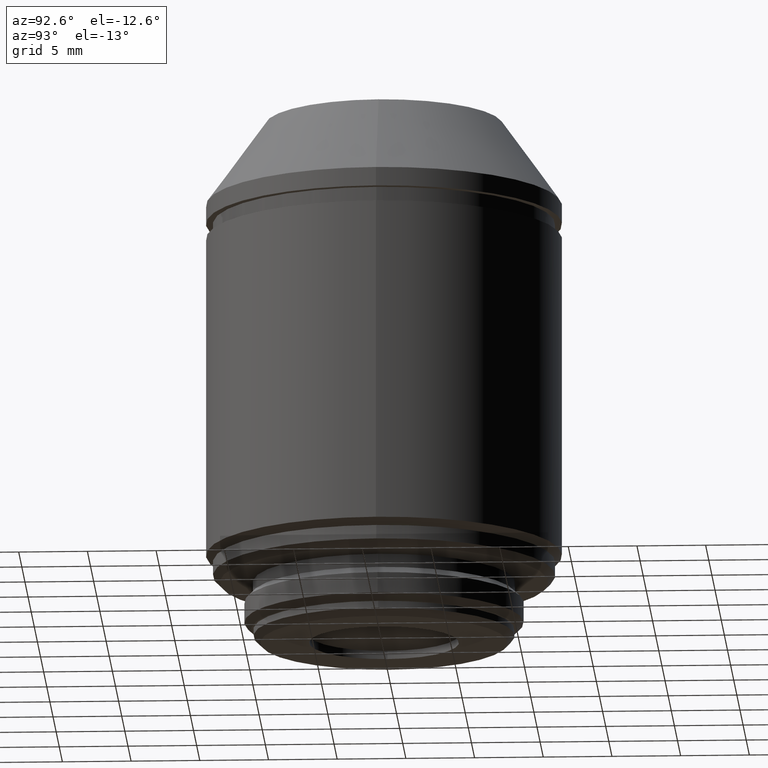
[diagram: clean part render]
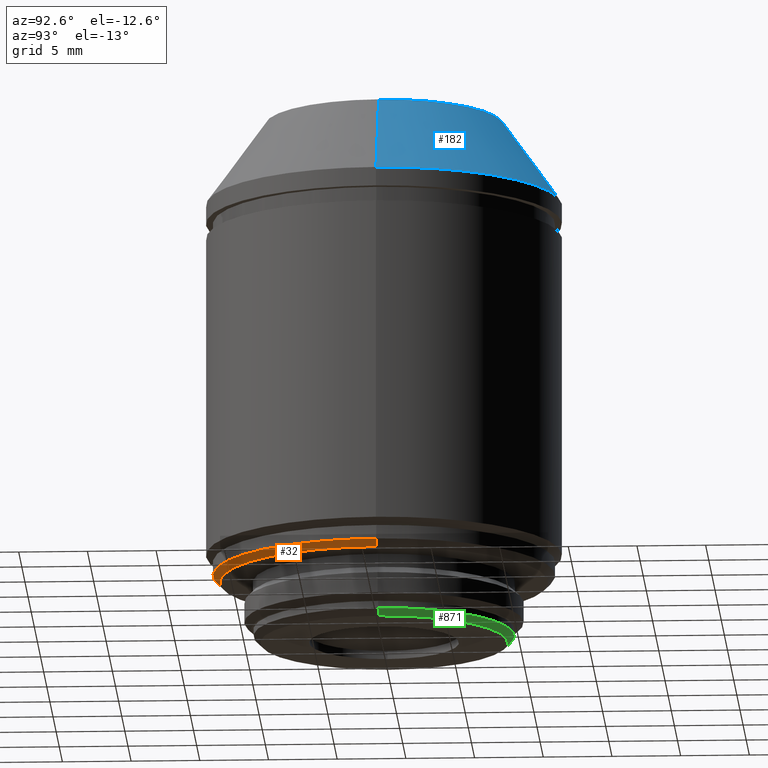
[diagram: same view with three faces highlighted in distinct colors, each labeled with its STEP entity id]
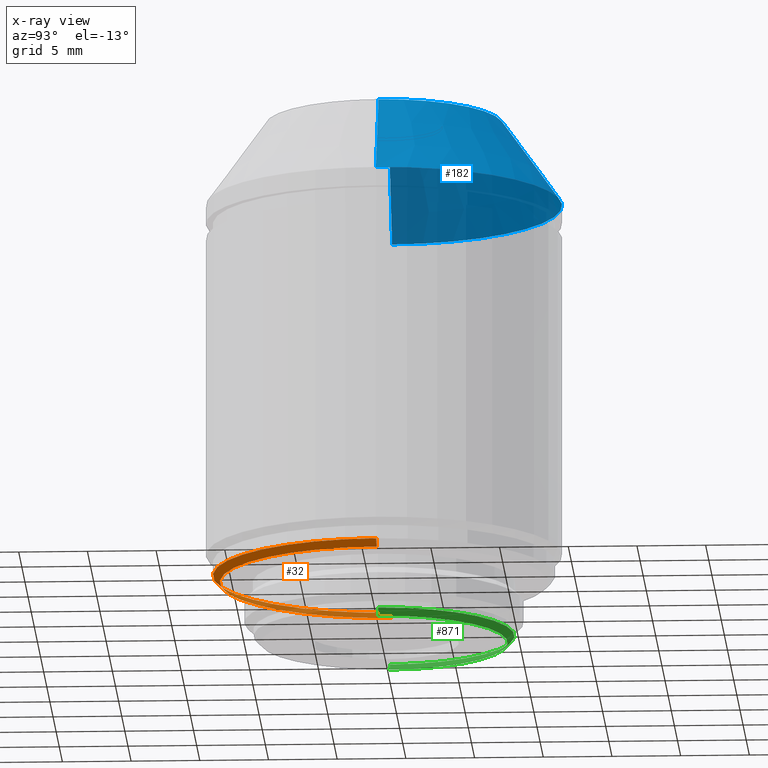
[diagram: x-ray of the same camera — body ghosted, the three highlighted faces saturated]
A machine part, auxiliary view with three faces highlighted in distinct colors.
The next image is the same camera in x-ray (body ghosted, the three faces saturated) — at least one of them is partly hidden behind the body in this view.
Their STEP definitions:

[orange] entity #32 — the highlighted conical surface has half-angle 45 deg.
#32 = ADVANCED_FACE ( 'NONE', ( #636 ), #53, .T. ) ;
#40 = CARTESIAN_POINT ( 'NONE',  ( 0.000000000000000000, 0.000000000000000000, 4.389999999999997904 ) ) ;
#53 = CONICAL_SURFACE ( 'NONE', #229, 12.44999999999999751, 0.7853981633974466137 ) ;
#62 = DIRECTION ( 'NONE',  ( 1.000000000000000000, 0.000000000000000000, 0.000000000000000000 ) ) ;
#210 = CIRCLE ( 'NONE', #476, 11.94999999999999929 ) ;
#223 = ORIENTED_EDGE ( 'NONE', *, *, #918, .F. ) ;
#229 = AXIS2_PLACEMENT_3D ( 'NONE', #40, #790, #874 ) ;
#249 = CIRCLE ( 'NONE', #495, 12.44999999999999751 ) ;
#296 = ORIENTED_EDGE ( 'NONE', *, *, #866, .F. ) ;
#318 = ORIENTED_EDGE ( 'NONE', *, *, #720, .T. ) ;
#324 = ORIENTED_EDGE ( 'NONE', *, *, #895, .T. ) ;
#327 = CARTESIAN_POINT ( 'NONE',  ( -12.44999999999999751, 1.524685264938454448E-15, 4.389999999999997904 ) ) ;
#412 = DIRECTION ( 'NONE',  ( -0.000000000000000000, -0.000000000000000000, 1.000000000000000000 ) ) ;
#417 = CARTESIAN_POINT ( 'NONE',  ( 0.000000000000000000, 0.000000000000000000, 3.889999999999997460 ) ) ;
#433 = VERTEX_POINT ( 'NONE', #934 ) ;
#476 = AXIS2_PLACEMENT_3D ( 'NONE', #417, #412, #983 ) ;
#495 = AXIS2_PLACEMENT_3D ( 'NONE', #989, #816, #62 ) ;
#588 = CARTESIAN_POINT ( 'NONE',  ( 12.44999999999999751, 0.000000000000000000, 4.389999999999997904 ) ) ;
#636 = FACE_OUTER_BOUND ( 'NONE', #646, .T. ) ;
#646 = EDGE_LOOP ( 'NONE', ( #223, #324, #318, #296 ) ) ;
#704 = VECTOR ( 'NONE', #975, 1000.000000000000000 ) ;
#720 = EDGE_CURVE ( 'NONE', #1026, #936, #725, .T. ) ;
#725 = LINE ( 'NONE', #1056, #704 ) ;
#750 = LINE ( 'NONE', #327, #963 ) ;
#779 = VERTEX_POINT ( 'NONE', #996 ) ;
#790 = DIRECTION ( 'NONE',  ( -0.000000000000000000, -0.000000000000000000, 1.000000000000000000 ) ) ;
#816 = DIRECTION ( 'NONE',  ( -0.000000000000000000, -0.000000000000000000, 1.000000000000000000 ) ) ;
#834 = CARTESIAN_POINT ( 'NONE',  ( 11.94999999999999929, 0.000000000000000000, 3.889999999999997460 ) ) ;
#866 = EDGE_CURVE ( 'NONE', #779, #936, #249, .T. ) ;
#874 = DIRECTION ( 'NONE',  ( 1.000000000000000000, 0.000000000000000000, 0.000000000000000000 ) ) ;
#895 = EDGE_CURVE ( 'NONE', #433, #1026, #210, .T. ) ;
#918 = EDGE_CURVE ( 'NONE', #433, #779, #750, .T. ) ;
#934 = CARTESIAN_POINT ( 'NONE',  ( -11.94999999999999929, 1.494069094959770661E-15, 3.889999999999997460 ) ) ;
#936 = VERTEX_POINT ( 'NONE', #588 ) ;
#963 = VECTOR ( 'NONE', #994, 1000.000000000000000 ) ;
#975 = DIRECTION ( 'NONE',  ( 0.7071067811865463515, 0.000000000000000000, 0.7071067811865487940 ) ) ;
#983 = DIRECTION ( 'NONE',  ( 1.000000000000000000, 0.000000000000000000, 0.000000000000000000 ) ) ;
#989 = CARTESIAN_POINT ( 'NONE',  ( 0.000000000000000000, 0.000000000000000000, 4.389999999999997904 ) ) ;
#994 = DIRECTION ( 'NONE',  ( -0.7071067811865463515, 8.659560562354918067E-17, 0.7071067811865487940 ) ) ;
#996 = CARTESIAN_POINT ( 'NONE',  ( -12.44999999999999751, 1.524685264938454448E-15, 4.389999999999997904 ) ) ;
#1026 = VERTEX_POINT ( 'NONE', #834 ) ;
#1056 = CARTESIAN_POINT ( 'NONE',  ( 12.44999999999999751, 0.000000000000000000, 4.389999999999997904 ) ) ;

[blue] entity #182 — the highlighted conical surface has half-angle 35.628 deg.
#76 = CARTESIAN_POINT ( 'NONE',  ( 0.000000000000000000, 0.000000000000000000, 37.94999999999999574 ) ) ;
#98 = DIRECTION ( 'NONE',  ( 0.000000000000000000, 0.000000000000000000, 1.000000000000000000 ) ) ;
#151 = DIRECTION ( 'NONE',  ( -1.000000000000000000, 0.000000000000000000, 0.000000000000000000 ) ) ;
#158 = AXIS2_PLACEMENT_3D ( 'NONE', #179, #98, #711 ) ;
#179 = CARTESIAN_POINT ( 'NONE',  ( 0.000000000000000000, 0.000000000000000000, 31.94999999999999929 ) ) ;
#180 = CARTESIAN_POINT ( 'NONE',  ( -8.650000000000000355, 0.000000000000000000, 37.94999999999999574 ) ) ;
#182 = ADVANCED_FACE ( 'NONE', ( #748 ), #599, .T. ) ;
#222 = DIRECTION ( 'NONE',  ( -0.5825189414280079747, 0.000000000000000000, -0.8128171275739660695 ) ) ;
#253 = ORIENTED_EDGE ( 'NONE', *, *, #444, .T. ) ;
#260 = EDGE_CURVE ( 'NONE', #292, #1031, #649, .T. ) ;
#285 = VECTOR ( 'NONE', #222, 1000.000000000000227 ) ;
#286 = ORIENTED_EDGE ( 'NONE', *, *, #549, .T. ) ;
#292 = VERTEX_POINT ( 'NONE', #1064 ) ;
#313 = CIRCLE ( 'NONE', #158, 12.94999999999999929 ) ;
#326 = CARTESIAN_POINT ( 'NONE',  ( 0.000000000000000000, 0.000000000000000000, 31.94999999999999929 ) ) ;
#334 = DIRECTION ( 'NONE',  ( 0.000000000000000000, 0.000000000000000000, 1.000000000000000000 ) ) ;
#368 = CARTESIAN_POINT ( 'NONE',  ( -12.94999999999999929, 1.585917604895820050E-15, 31.94999999999999929 ) ) ;
#388 = ORIENTED_EDGE ( 'NONE', *, *, #260, .F. ) ;
#396 = ORIENTED_EDGE ( 'NONE', *, *, #971, .F. ) ;
#415 = DIRECTION ( 'NONE',  ( 1.000000000000000000, 0.000000000000000000, 0.000000000000000000 ) ) ;
#422 = CARTESIAN_POINT ( 'NONE',  ( -12.94999999999999929, 0.000000000000000000, 31.94999999999999929 ) ) ;
#441 = AXIS2_PLACEMENT_3D ( 'NONE', #326, #661, #151 ) ;
#444 = EDGE_CURVE ( 'NONE', #677, #551, #313, .T. ) ;
#470 = DIRECTION ( 'NONE',  ( 0.5825189414280079747, 7.133799570625149740E-17, -0.8128171275739660695 ) ) ;
#475 = CARTESIAN_POINT ( 'NONE',  ( 12.94999999999999929, 0.000000000000000000, 31.94999999999999929 ) ) ;
#549 = EDGE_CURVE ( 'NONE', #292, #677, #1038, .T. ) ;
#551 = VERTEX_POINT ( 'NONE', #368 ) ;
#583 = EDGE_LOOP ( 'NONE', ( #388, #286, #253, #396 ) ) ;
#599 = CONICAL_SURFACE ( 'NONE', #441, 12.94999999999999929, 0.6218242878305897392 ) ;
#649 = CIRCLE ( 'NONE', #1029, 8.650000000000000355 ) ;
#661 = DIRECTION ( 'NONE',  ( 0.000000000000000000, 0.000000000000000000, -1.000000000000000000 ) ) ;
#677 = VERTEX_POINT ( 'NONE', #475 ) ;
#711 = DIRECTION ( 'NONE',  ( 1.000000000000000000, 0.000000000000000000, 0.000000000000000000 ) ) ;
#748 = FACE_OUTER_BOUND ( 'NONE', #583, .T. ) ;
#960 = VECTOR ( 'NONE', #470, 1000.000000000000227 ) ;
#971 = EDGE_CURVE ( 'NONE', #1031, #551, #1066, .T. ) ;
#1029 = AXIS2_PLACEMENT_3D ( 'NONE', #76, #334, #415 ) ;
#1031 = VERTEX_POINT ( 'NONE', #180 ) ;
#1038 = LINE ( 'NONE', #1049, #960 ) ;
#1049 = CARTESIAN_POINT ( 'NONE',  ( 12.94999999999999929, 1.585917604895820050E-15, 31.94999999999999929 ) ) ;
#1064 = CARTESIAN_POINT ( 'NONE',  ( 8.650000000000000355, 1.322618543079139916E-15, 37.94999999999999574 ) ) ;
#1066 = LINE ( 'NONE', #422, #285 ) ;

[green] entity #871 — the highlighted conical surface has half-angle 45 deg.
#36 = ORIENTED_EDGE ( 'NONE', *, *, #912, .F. ) ;
#43 = DIRECTION ( 'NONE',  ( -0.7071067811865439090, 8.659560562354889717E-17, 0.7071067811865512365 ) ) ;
#64 = CIRCLE ( 'NONE', #904, 9.500000000000000000 ) ;
#69 = DIRECTION ( 'NONE',  ( 1.000000000000000000, 0.000000000000000000, 0.000000000000000000 ) ) ;
#82 = CARTESIAN_POINT ( 'NONE',  ( 9.000000000000007105, 0.000000000000000000, -0.6100000000000022071 ) ) ;
#91 = EDGE_CURVE ( 'NONE', #980, #532, #727, .T. ) ;
#94 = CARTESIAN_POINT ( 'NONE',  ( 9.500000000000000000, 1.163414459189985485E-15, -0.1100000000000052741 ) ) ;
#121 = AXIS2_PLACEMENT_3D ( 'NONE', #322, #728, #317 ) ;
#169 = DIRECTION ( 'NONE',  ( 0.000000000000000000, 0.000000000000000000, 1.000000000000000000 ) ) ;
#170 = EDGE_CURVE ( 'NONE', #1082, #532, #64, .T. ) ;
#274 = EDGE_CURVE ( 'NONE', #969, #1082, #741, .T. ) ;
#293 = CARTESIAN_POINT ( 'NONE',  ( -9.500000000000000000, 0.000000000000000000, -0.1100000000000052741 ) ) ;
#317 = DIRECTION ( 'NONE',  ( -1.000000000000000000, 0.000000000000000000, 0.000000000000000000 ) ) ;
#322 = CARTESIAN_POINT ( 'NONE',  ( 0.000000000000000000, 0.000000000000000000, -0.6100000000000022071 ) ) ;
#399 = FACE_OUTER_BOUND ( 'NONE', #484, .T. ) ;
#478 = CARTESIAN_POINT ( 'NONE',  ( -9.000000000000007105, 1.132798289211302290E-15, -0.6100000000000022071 ) ) ;
#484 = EDGE_LOOP ( 'NONE', ( #36, #596, #954, #632 ) ) ;
#532 = VERTEX_POINT ( 'NONE', #293 ) ;
#543 = VECTOR ( 'NONE', #43, 1000.000000000000000 ) ;
#559 = VECTOR ( 'NONE', #586, 1000.000000000000000 ) ;
#586 = DIRECTION ( 'NONE',  ( 0.7071067811865439090, 0.000000000000000000, 0.7071067811865512365 ) ) ;
#596 = ORIENTED_EDGE ( 'NONE', *, *, #91, .T. ) ;
#632 = ORIENTED_EDGE ( 'NONE', *, *, #274, .F. ) ;
#713 = CARTESIAN_POINT ( 'NONE',  ( -9.000000000000007105, 1.102182119232618897E-15, -0.6100000000000022071 ) ) ;
#727 = LINE ( 'NONE', #713, #543 ) ;
#728 = DIRECTION ( 'NONE',  ( 0.000000000000000000, 0.000000000000000000, -1.000000000000000000 ) ) ;
#736 = CARTESIAN_POINT ( 'NONE',  ( 9.000000000000007105, 0.000000000000000000, -0.6100000000000022071 ) ) ;
#738 = DIRECTION ( 'NONE',  ( 0.000000000000000000, 0.000000000000000000, 1.000000000000000000 ) ) ;
#741 = LINE ( 'NONE', #736, #559 ) ;
#809 = CARTESIAN_POINT ( 'NONE',  ( 0.000000000000000000, 0.000000000000000000, -0.6100000000000022071 ) ) ;
#815 = DIRECTION ( 'NONE',  ( -1.000000000000000000, 0.000000000000000000, 0.000000000000000000 ) ) ;
#871 = ADVANCED_FACE ( 'NONE', ( #399 ), #1051, .T. ) ;
#893 = CARTESIAN_POINT ( 'NONE',  ( 0.000000000000000000, 0.000000000000000000, -0.1100000000000052741 ) ) ;
#904 = AXIS2_PLACEMENT_3D ( 'NONE', #893, #169, #815 ) ;
#912 = EDGE_CURVE ( 'NONE', #980, #969, #997, .T. ) ;
#954 = ORIENTED_EDGE ( 'NONE', *, *, #170, .F. ) ;
#969 = VERTEX_POINT ( 'NONE', #82 ) ;
#980 = VERTEX_POINT ( 'NONE', #478 ) ;
#997 = CIRCLE ( 'NONE', #121, 9.000000000000007105 ) ;
#1051 = CONICAL_SURFACE ( 'NONE', #1067, 9.000000000000007105, 0.7853981633974431720 ) ;
#1067 = AXIS2_PLACEMENT_3D ( 'NONE', #809, #738, #69 ) ;
#1082 = VERTEX_POINT ( 'NONE', #94 ) ;